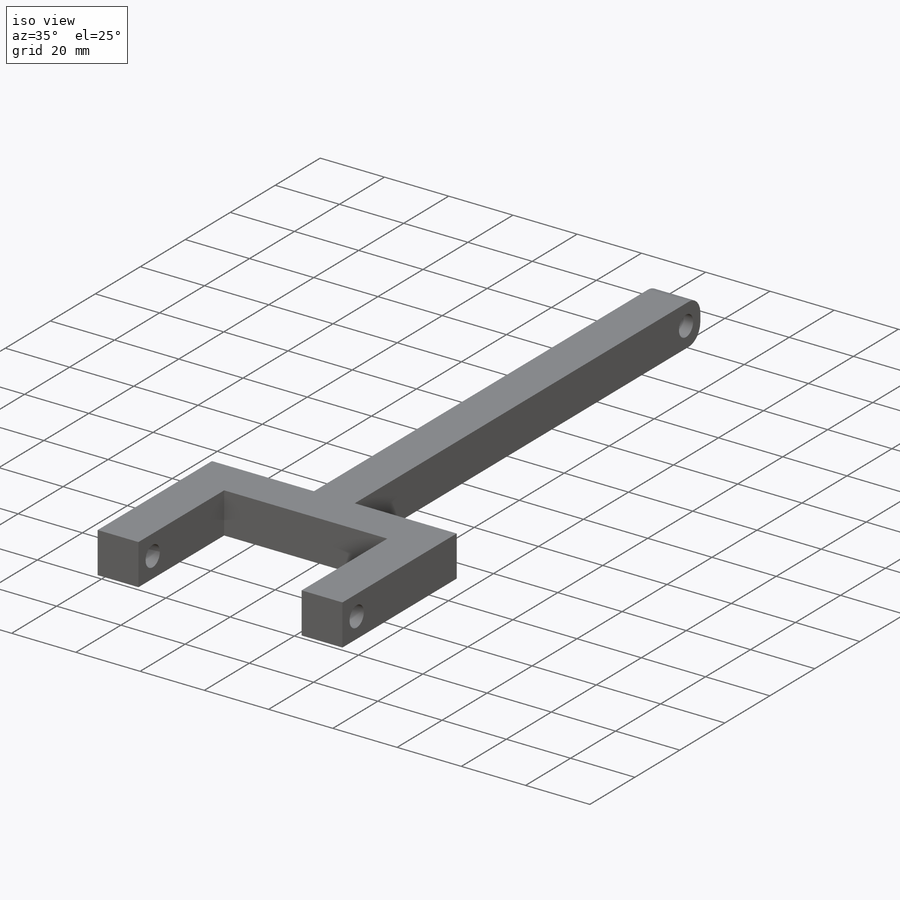
[diagram: iso view]
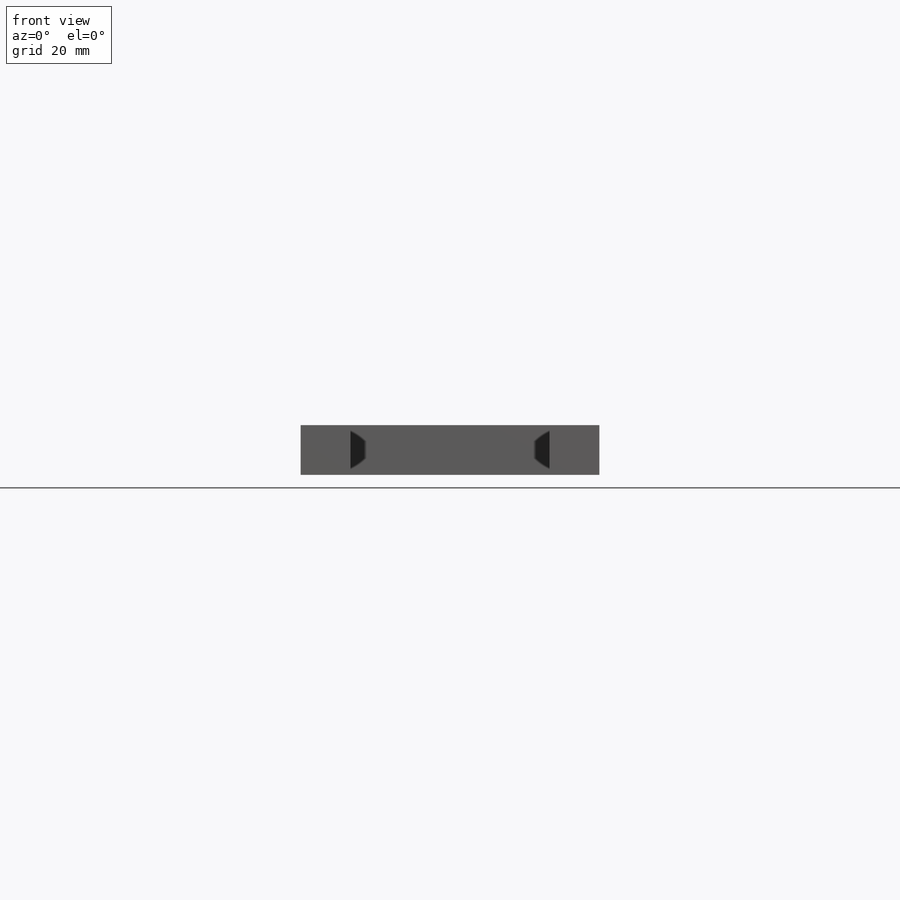
[diagram: front view]
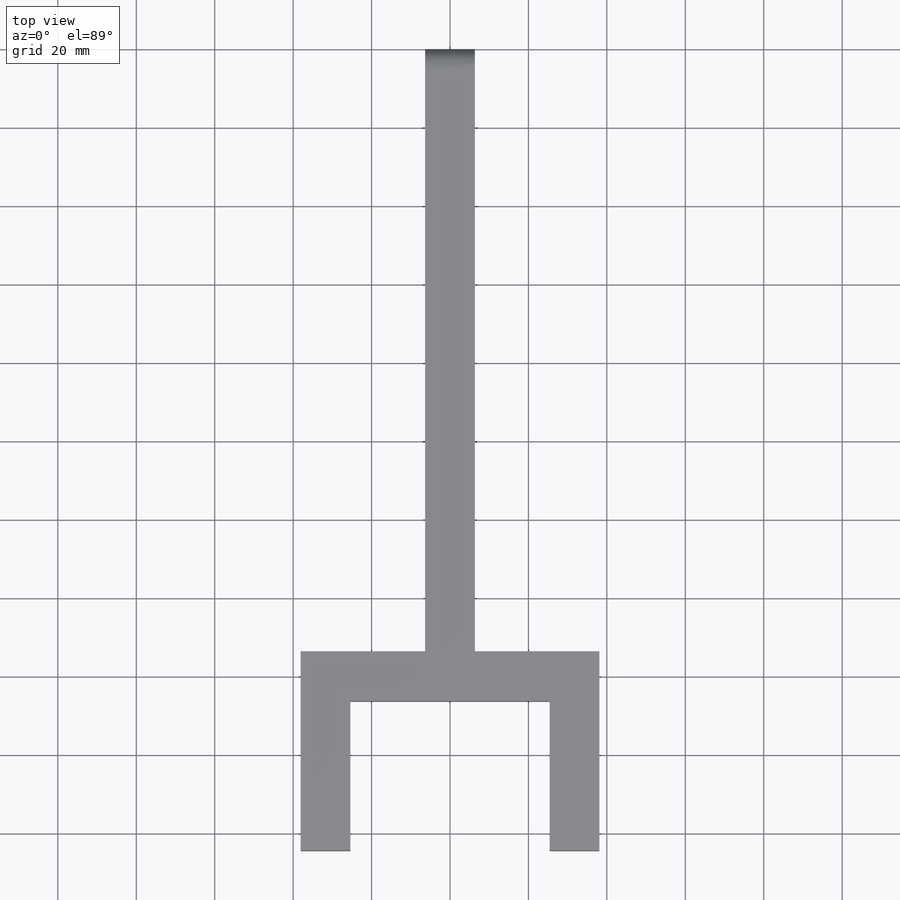
[diagram: top view]
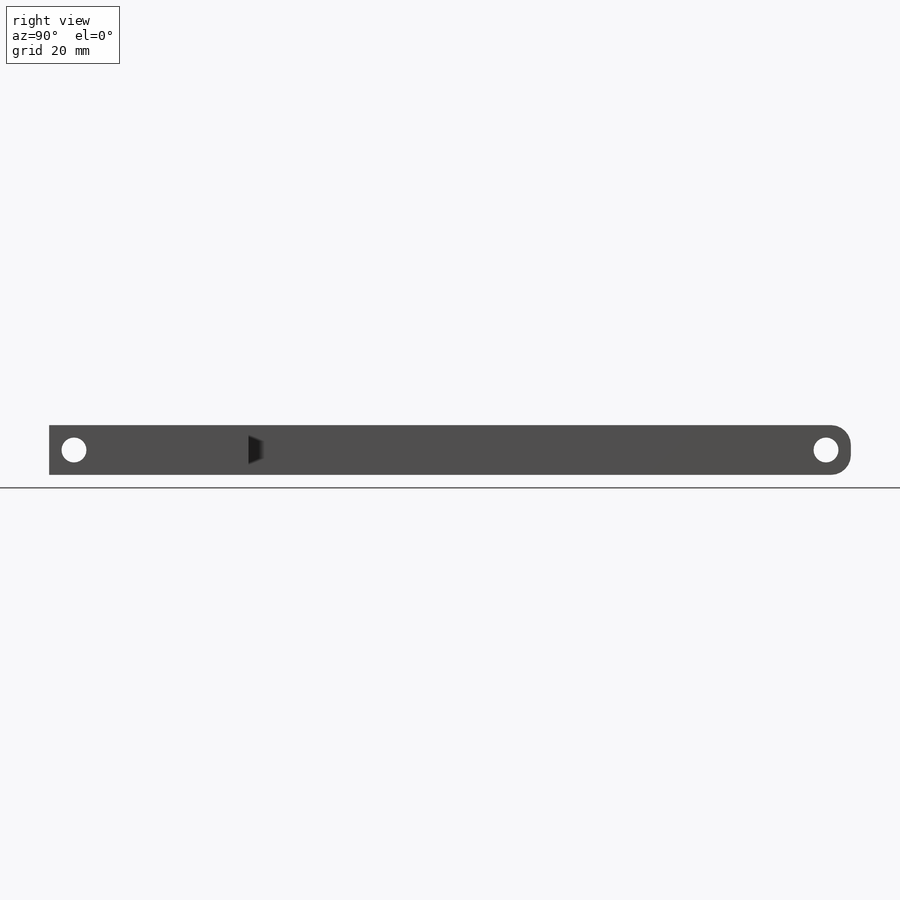
[diagram: right view]
SOLIDWORKS PART (.sldprt)
format: sldprt  version: not decoded by parser v0  size: 184,832 bytes
history: native  units: mm
features: sketch x5, extrude x3, cut_extrude x2, material x1, mirror x1, fillet x1 (+12 scaffold rows collapsed)
feature tree (25):
  scaffold x12  (default folders/planes/origin — collapsed)
  material  "Material <not specified>"
  sketch  "Sketch1"  dims[D1=12.7mm D2=12.7mm D3=0.0mm D4=0.0mm]
  extrude  "Boss-Extrude1"  Depth=80.01mm
  sketch  "Sketch4"  dims[D1=12.7mm]
  extrude  "Boss-Extrude2"  Depth=76.2mm
  sketch  "Sketch5"  dims[D1=12.7mm]
  extrude  "Boss-Extrude3"  Depth=50.8mm
  sketch  "Sketch6"  dims[D1=6.35mm D2=6.35mm]
  cut_extrude  "Cut-Extrude1"  Depth=16.51mm
  mirror  "Mirror1"
  sketch  "Sketch7"  dims[c1.D1=6.35mm c1.D2=6.35mm c1.D3=6.35mm c2.D2=6.35mm c2.D3=~8.980256mm c3.D3=90.0deg c4.D3=6.35mm c4.D1=6.35mm c4.D2=6.35mm]
  cut_extrude  "Cut-Extrude2"  [1 undecoded]
  fillet  "Fillet1"  Radius=5.08mm
decode coverage: 10 of 12 modeling features carry decoded parameters
note: ~ marks probable driven/reference dimensions
note: 1 parameter value undecoded
note: suppression state not decoded; provenance and decode notes live in map.json
